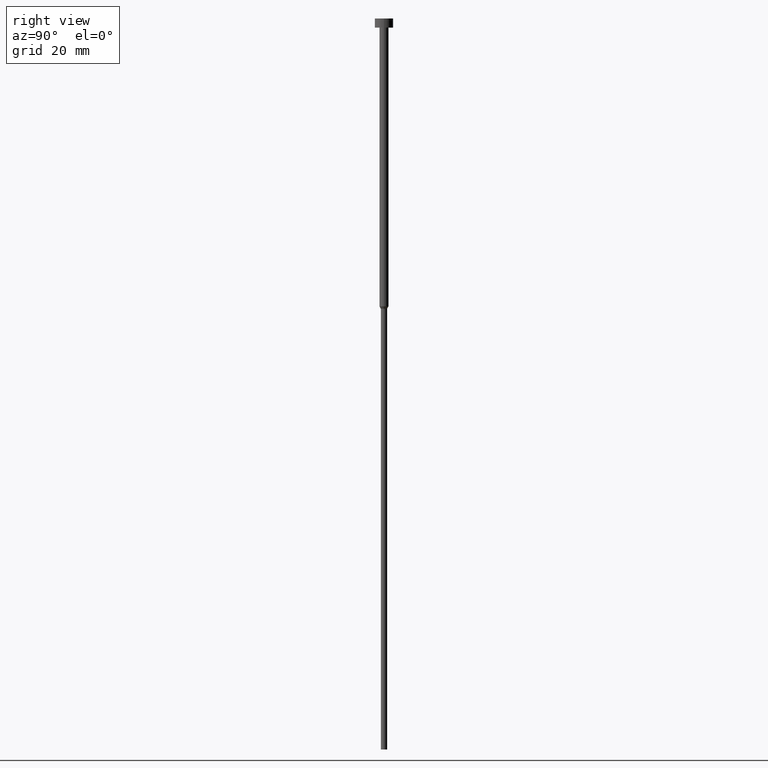
[diagram: clean part render]
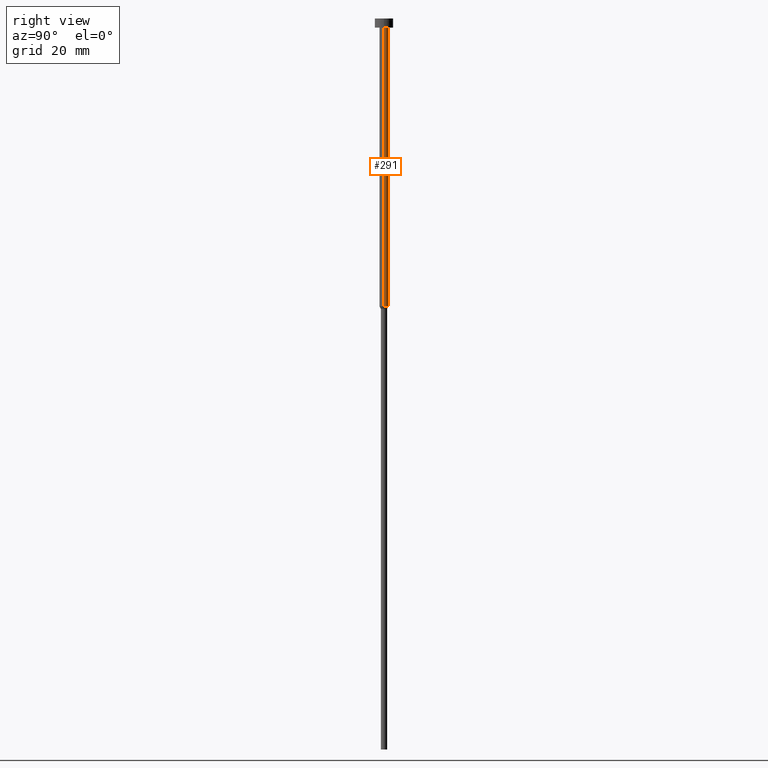
[diagram: same view with one face highlighted and labeled with its STEP entity id]
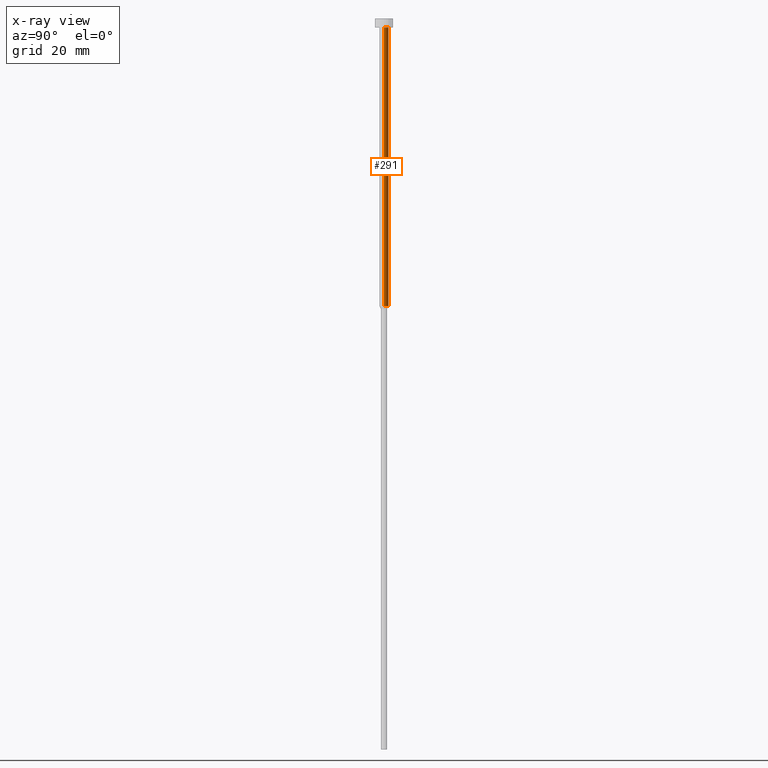
[diagram: x-ray of the same camera — body ghosted, the highlighted face saturated]
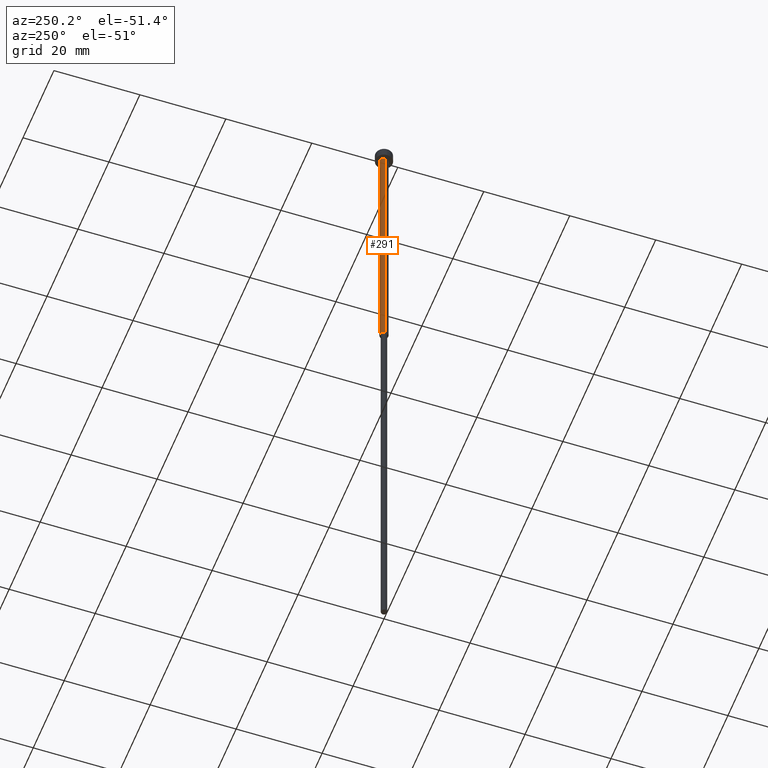
[diagram: same view with one face highlighted and labeled with its STEP entity id]
A machine part, right view. The second image highlights one B-rep face of the part: STEP entity #291.
The next image is the same camera in x-ray: the body ghosted, the highlighted face saturated — about 0% of this face is hidden behind the body in this view.
A second angle (auxiliary view) of the same face is appended — the face is thin or edge-on in the first view.
In plain terms, the highlighted cylindrical surface (edge-blend (fillet) strip) has radius 1 mm, axis along (-0, -0, 1).
Its self-contained STEP definition (entity closure, byte-faithful):
#5 = DIRECTION ( 'NONE',  ( 1.000000000000000000, 0.000000000000000000, 0.000000000000000000 ) ) ;
#9 = CARTESIAN_POINT ( 'NONE',  ( 1.000000000000003109, 0.000000000000000000, -63.00000000000000000 ) ) ;
#14 = VECTOR ( 'NONE', #342, 1000.000000000000000 ) ;
#17 = EDGE_CURVE ( 'NONE', #242, #177, #351, .T. ) ;
#22 = EDGE_CURVE ( 'NONE', #242, #346, #257, .T. ) ;
#43 = EDGE_CURVE ( 'NONE', #346, #54, #191, .T. ) ;
#48 = DIRECTION ( 'NONE',  ( -0.000000000000000000, -0.000000000000000000, 1.000000000000000000 ) ) ;
#54 = VERTEX_POINT ( 'NONE', #248 ) ;
#58 = DIRECTION ( 'NONE',  ( -0.000000000000000000, -0.000000000000000000, 1.000000000000000000 ) ) ;
#81 = AXIS2_PLACEMENT_3D ( 'NONE', #160, #107, #221 ) ;
#82 = DIRECTION ( 'NONE',  ( -0.000000000000000000, -0.000000000000000000, 1.000000000000000000 ) ) ;
#85 = CARTESIAN_POINT ( 'NONE',  ( -1.000000000000003331, 1.224646799147357151E-16, 0.000000000000000000 ) ) ;
#107 = DIRECTION ( 'NONE',  ( -0.000000000000000000, -0.000000000000000000, 1.000000000000000000 ) ) ;
#111 = CARTESIAN_POINT ( 'NONE',  ( 1.000000000000003553, 0.000000000000000000, -2.000000000000000444 ) ) ;
#160 = CARTESIAN_POINT ( 'NONE',  ( 0.000000000000000000, 0.000000000000000000, -2.000000000000000444 ) ) ;
#170 = CARTESIAN_POINT ( 'NONE',  ( -1.000000000000003109, 1.224646799147356905E-16, -63.00000000000000000 ) ) ;
#177 = VERTEX_POINT ( 'NONE', #111 ) ;
#179 = AXIS2_PLACEMENT_3D ( 'NONE', #298, #48, #316 ) ;
#181 = EDGE_CURVE ( 'NONE', #177, #54, #307, .T. ) ;
#191 = LINE ( 'NONE', #85, #310 ) ;
#192 = ORIENTED_EDGE ( 'NONE', *, *, #17, .F. ) ;
#202 = ORIENTED_EDGE ( 'NONE', *, *, #181, .F. ) ;
#221 = DIRECTION ( 'NONE',  ( 1.000000000000000000, 0.000000000000000000, 0.000000000000000000 ) ) ;
#242 = VERTEX_POINT ( 'NONE', #9 ) ;
#244 = ORIENTED_EDGE ( 'NONE', *, *, #43, .T. ) ;
#245 = AXIS2_PLACEMENT_3D ( 'NONE', #311, #58, #5 ) ;
#248 = CARTESIAN_POINT ( 'NONE',  ( -1.000000000000003553, 1.224646799147357398E-16, -2.000000000000000444 ) ) ;
#253 = FACE_OUTER_BOUND ( 'NONE', #295, .T. ) ;
#257 = CIRCLE ( 'NONE', #179, 1.000000000000003109 ) ;
#265 = ORIENTED_EDGE ( 'NONE', *, *, #22, .T. ) ;
#291 = ADVANCED_FACE ( 'NONE', ( #253 ), #315, .T. ) ;
#295 = EDGE_LOOP ( 'NONE', ( #265, #244, #202, #192 ) ) ;
#298 = CARTESIAN_POINT ( 'NONE',  ( 0.000000000000000000, 0.000000000000000000, -63.00000000000000000 ) ) ;
#307 = CIRCLE ( 'NONE', #81, 1.000000000000003553 ) ;
#310 = VECTOR ( 'NONE', #82, 1000.000000000000000 ) ;
#311 = CARTESIAN_POINT ( 'NONE',  ( 0.000000000000000000, 0.000000000000000000, 0.000000000000000000 ) ) ;
#315 = CYLINDRICAL_SURFACE ( 'NONE', #245, 1.000000000000003331 ) ;
#316 = DIRECTION ( 'NONE',  ( 1.000000000000000000, 0.000000000000000000, 0.000000000000000000 ) ) ;
#319 = CARTESIAN_POINT ( 'NONE',  ( 1.000000000000003331, 0.000000000000000000, 0.000000000000000000 ) ) ;
#342 = DIRECTION ( 'NONE',  ( -0.000000000000000000, -0.000000000000000000, 1.000000000000000000 ) ) ;
#346 = VERTEX_POINT ( 'NONE', #170 ) ;
#351 = LINE ( 'NONE', #319, #14 ) ;